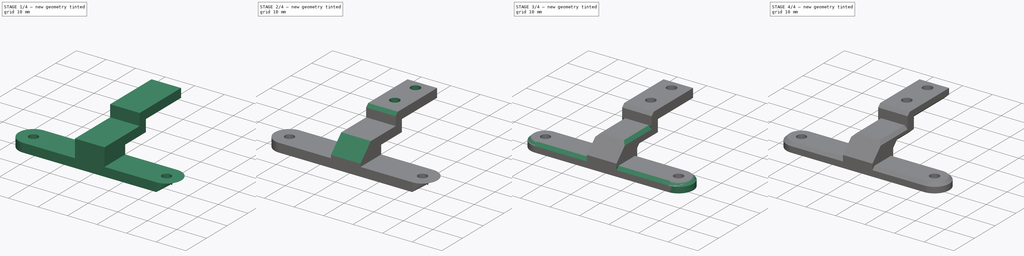
[diagram: build sequence overview — one tinted view per stage of 4, left to right]
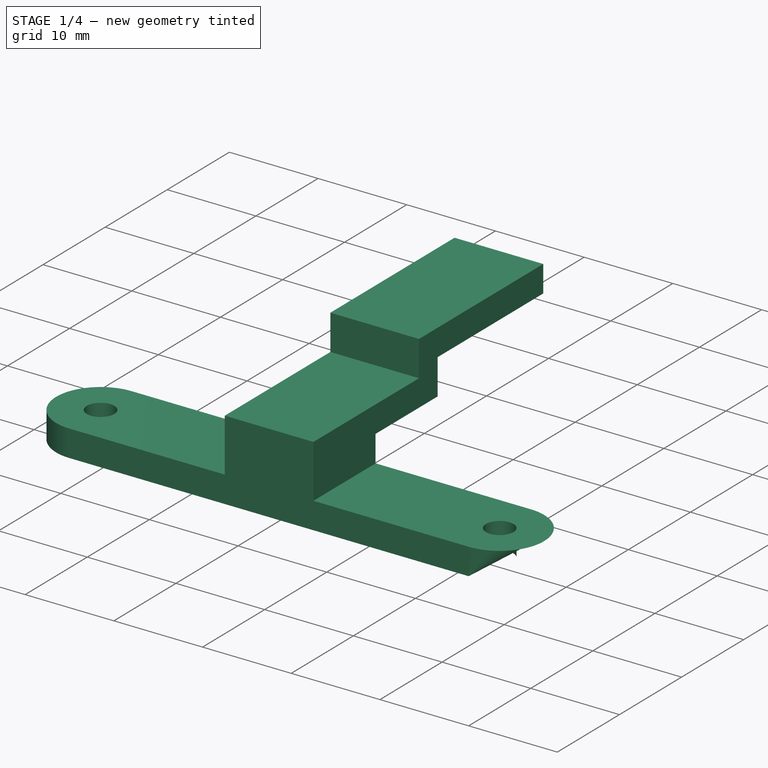
[diagram: stage 1 of 4 — iso view after this stage's code; geometry added in this stage tinted green]
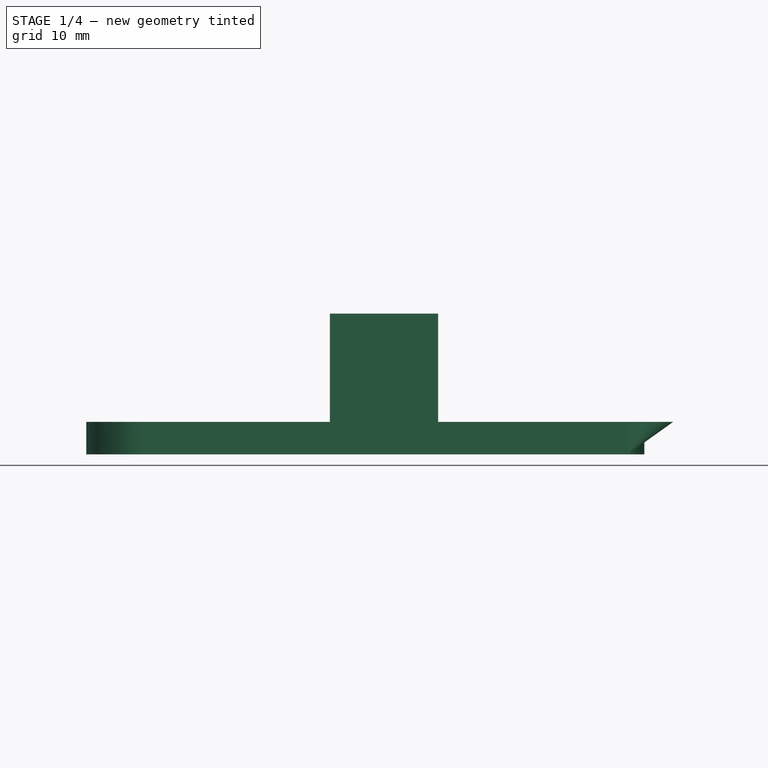
[diagram: stage 1 of 4 — front view after this stage's code; geometry added in this stage tinted green]
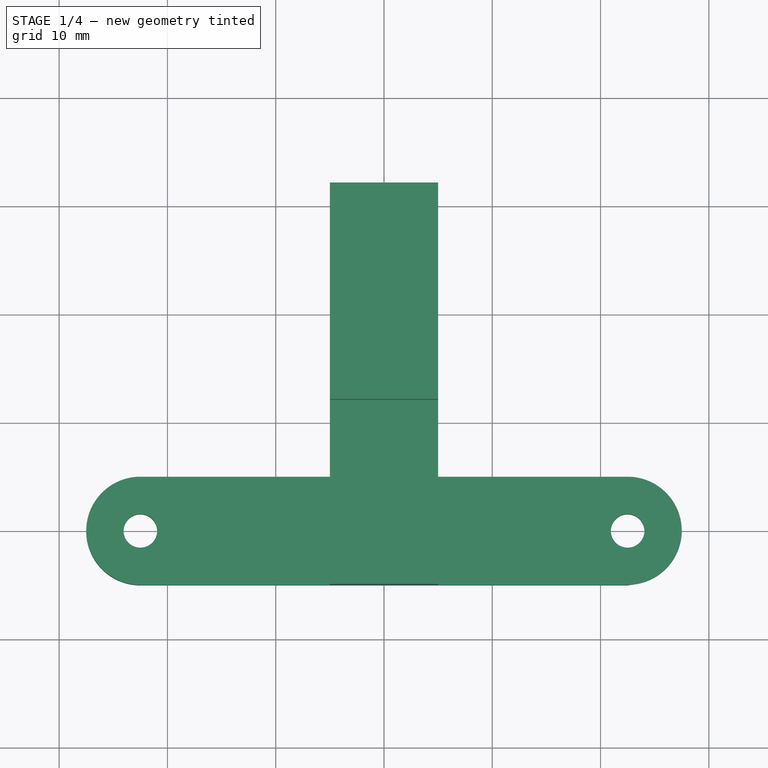
[diagram: stage 1 of 4 — top view after this stage's code; geometry added in this stage tinted green]
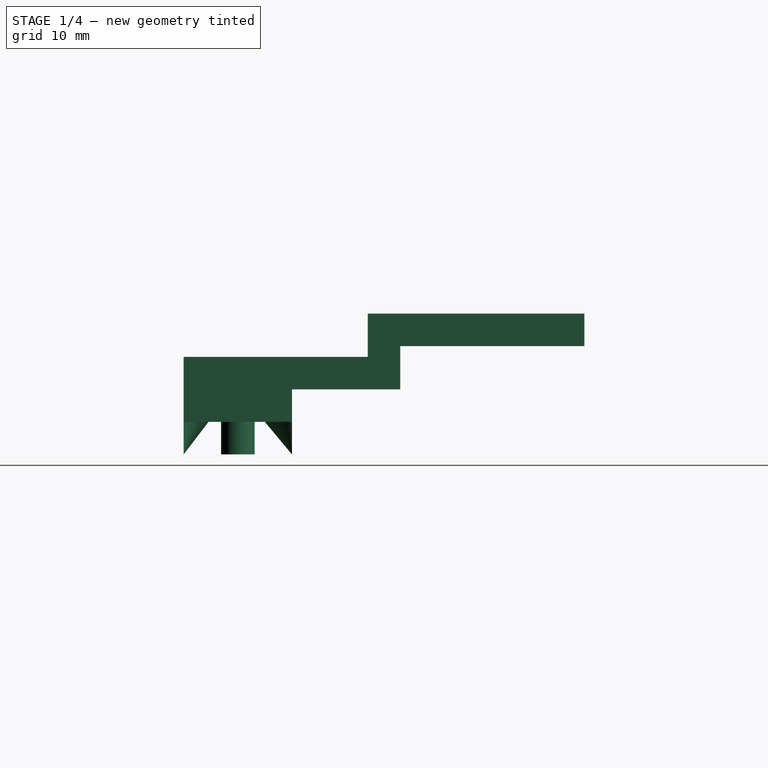
[diagram: stage 1 of 4 — right view after this stage's code; geometry added in this stage tinted green]
FCSTD DOCUMENT  (FreeCAD 0.18R16093 +53 (Git))
Label: rsd435_frontal_holder
License: All rights reserved
LicenseURL: http://en.wikipedia.org/wiki/All_rights_reserved
objects: PartDesign::Chamfer×7, Sketcher::SketchObject×3, PartDesign::Pad×2, PartDesign::Pocket×1, PartDesign::Body×1
note: 17 computed .brp shape members not serialized (recipe doc carries the construction recipe); baked Part::Feature solids carry a one-line shape summary decoded from their .brp

FEATURE [Sketcher::SketchObject] Sketch
  MapMode = 5
  Support = -> [XY_Plane]
  sketch-geometry (6):
    g0: ArcOfCircle CenterX=-22.5 CenterY=0 CenterZ=0 NormalX=0 NormalY=0 NormalZ=1 AngleXU=0 Radius=5 StartAngle=1.5708 EndAngle=4.71239
    g1: ArcOfCircle CenterX=22.5 CenterY=-2e-16 CenterZ=0 NormalX=0 NormalY=0 NormalZ=1 AngleXU=0 Radius=5 StartAngle=4.71239 EndAngle=7.85398
    g2: LineSegment StartX=-22.5 StartY=-5 StartZ=0 EndX=22.5 EndY=-5 EndZ=0
    g3: LineSegment StartX=-22.5 StartY=5 StartZ=0 EndX=22.5 EndY=5 EndZ=0
    g4: Circle CenterX=-22.5 CenterY=0 CenterZ=0 NormalX=0 NormalY=0 NormalZ=1 AngleXU=0 Radius=1.55
    g5: Circle CenterX=22.5 CenterY=-2e-16 CenterZ=0 NormalX=0 NormalY=0 NormalZ=1 AngleXU=0 Radius=1.55
  constraints (13):
    c: Tangent(g0,g3) = 1.5708
    c: Tangent(g0,g2) = -1.5708
    c: Tangent(g2,g1) = -1.5708
    c: Tangent(g3,g1) = 1.5708
    c: Horizontal(g2)
    c: Equal(g0,g1)
    c: Symmetric(g0,g1,g-1)
    c: DistanceY(g0,g0) = 10
    c: DistanceX(g0,g1) = 45
    c: Coincident(g4,g0)
    c: Coincident(g5,g1)
    c: Diameter(g4) = 3.1
    c: Equal(g5,g4)
FEATURE [PartDesign::Pad] Pad
  Length = 3
  Length2 = 100
  Profile = -> Sketch
  Type = 0
FEATURE [Sketcher::SketchObject] Sketch001
  ExternalGeometry = -> [Pad]
  MapMode = 5
  Placement = pos=(0,0,0) rot=(0.57735,0.57735,0.57735;2.0944rad)
  Support = -> [YZ_Plane]
  sketch-geometry (12):
    g0: LineSegment StartX=5 StartY=3 StartZ=0 EndX=5 EndY=7 EndZ=0
    g1: LineSegment StartX=32 StartY=10 StartZ=0 EndX=32 EndY=13 EndZ=0
    g2: LineSegment StartX=-5 StartY=3 StartZ=0 EndX=5 EndY=3 EndZ=0
    g3: LineSegment StartX=15 StartY=10 StartZ=0 EndX=32 EndY=10 EndZ=0
    g4: LineSegment StartX=32 StartY=13 StartZ=0 EndX=15 EndY=13 EndZ=0
    g5: LineSegment StartX=15 StartY=13 StartZ=0 EndX=12 EndY=13 EndZ=0
    g6: LineSegment StartX=12 StartY=13 StartZ=0 EndX=12 EndY=9 EndZ=0
    g7: LineSegment StartX=15 StartY=10 StartZ=0 EndX=15 EndY=6 EndZ=0
    g8: LineSegment StartX=12 StartY=9 StartZ=0 EndX=-5 EndY=9 EndZ=0
    g9: LineSegment StartX=-5 StartY=9 StartZ=0 EndX=-5 EndY=3 EndZ=0
    g10: LineSegment StartX=15 StartY=6 StartZ=0 EndX=5 EndY=6 EndZ=0
    g11: LineSegment StartX=5 StartY=6 StartZ=0 EndX=5 EndY=3 EndZ=0
  constraints (35):
    c: Vertical(g0)
    c: Vertical(g1)
    c: Coincident(g2,g0)
    c: Horizontal(g-3,g2)
    c: DistanceY(g0,g0) = 4
    c: DistanceY(g1,g1) = 3
    c: DistanceX(g2,g2) = 10
    c: Coincident(g-3,g0)
    c: Horizontal(g3)
    c: Horizontal(g4)
    c: Coincident(g3,g1)
    c: Coincident(g4,g1)
    c: Vertical(g3,g4)
    c: DistanceX(g4,g4) = 17
    c: DistanceY(g0,g4) = 10
    c: DistanceX(g0,g3) = 10
    c: Coincident(g5,g4)
    c: Horizontal(g5)
    c: Coincident(g6,g5)
    c: Vertical(g6)
    c: Coincident(g7,g3)
    c: Vertical(g7)
    c: Coincident(g8,g6)
    c: Horizontal(g8)
    c: Coincident(g9,g2)
    c: Vertical(g9)
    c: Coincident(g10,g7)
    c: Horizontal(g10)
    c: Coincident(g11,g10)
    c: Coincident(g11,g0)
    c: Vertical(g11)
    c: Coincident(g9,g8)
    c: DistanceX(g5,g4) = 3
    c: DistanceY(g7,g6) = 3
    c: DistanceY(g0,g10) = 3
FEATURE [PartDesign::Pad] Pad001
  BaseFeature = -> Pad
  Length = 10
  Length2 = 100
  Midplane = true
  Profile = -> Sketch001
  Type = 0
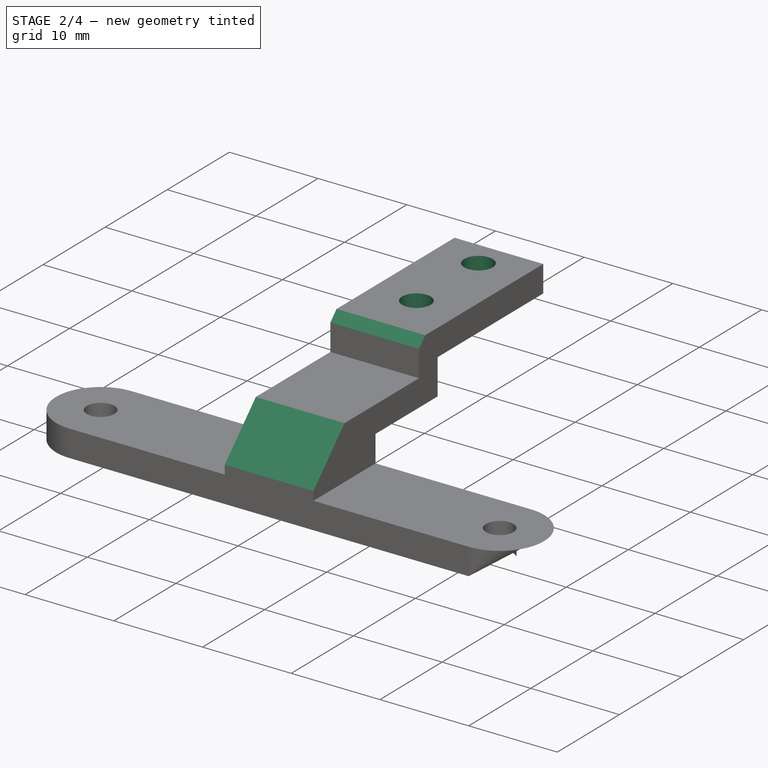
[diagram: stage 2 of 4 — iso view after this stage's code; geometry added in this stage tinted green]
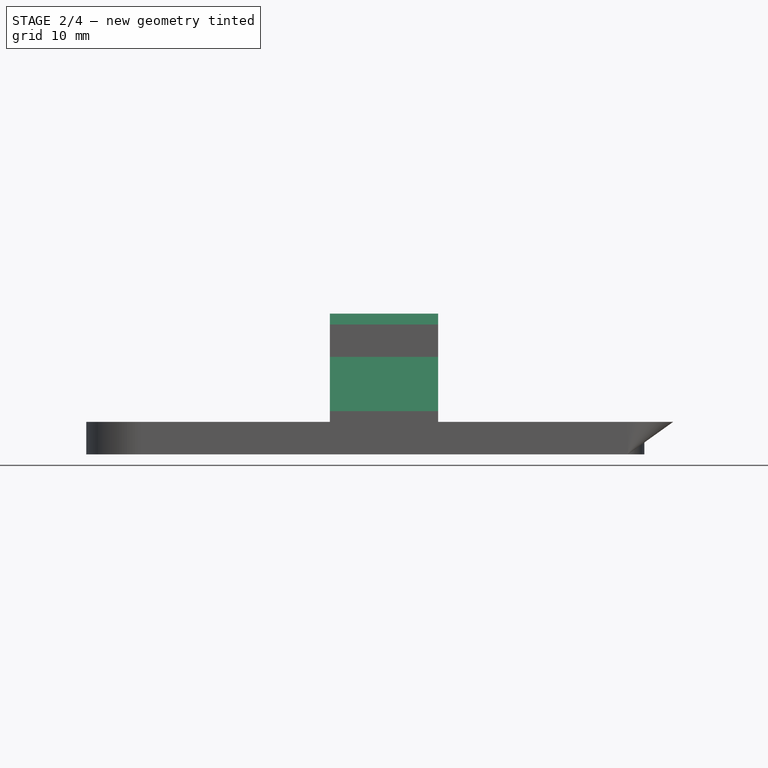
[diagram: stage 2 of 4 — front view after this stage's code; geometry added in this stage tinted green]
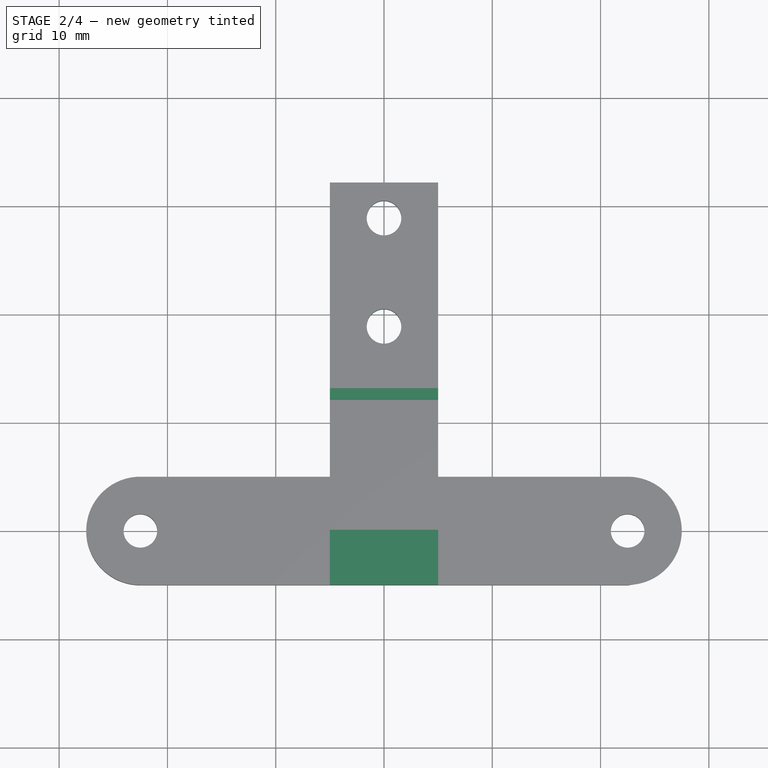
[diagram: stage 2 of 4 — top view after this stage's code; geometry added in this stage tinted green]
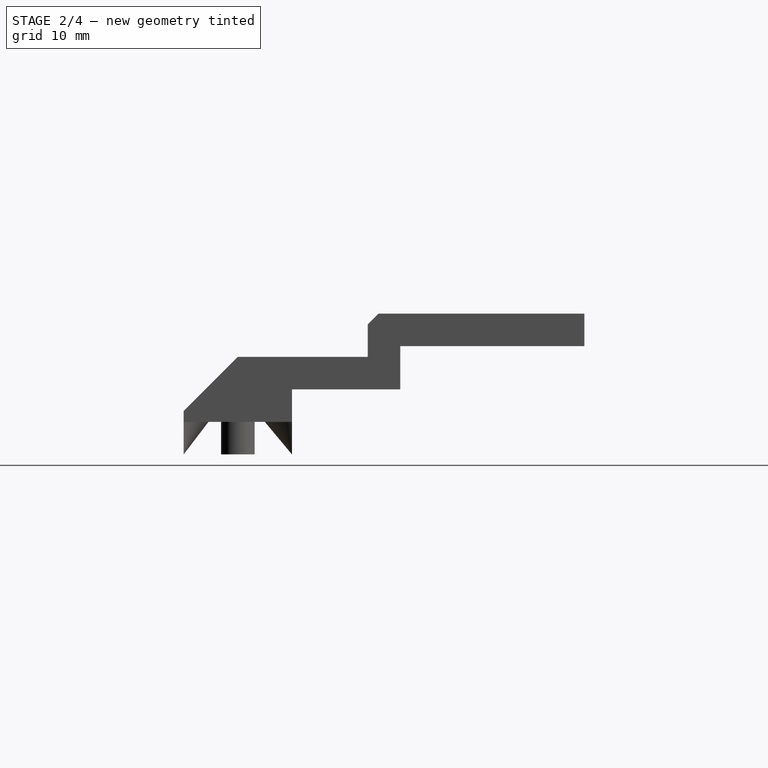
[diagram: stage 2 of 4 — right view after this stage's code; geometry added in this stage tinted green]
FEATURE [Sketcher::SketchObject] Sketch002
  MapMode = 5
  Placement = pos=(-3.6e-15,2.9e-15,13) rot=(0,0,1;0rad)
  Support = -> [Pad001]
  sketch-geometry (2):
    g0: Circle CenterX=0 CenterY=28.7146 CenterZ=0 NormalX=0 NormalY=0 NormalZ=1 AngleXU=0 Radius=1.6
    g1: Circle CenterX=0 CenterY=18.7146 CenterZ=0 NormalX=0 NormalY=0 NormalZ=1 AngleXU=0 Radius=1.6
  constraints (5):
    c: Diameter(g0) = 3.2
    c: Equal(g0,g1)
    c: Vertical(g1,g0)
    c: PointOnObject(g0,g-2)
    c: Distance(g1,g0) = 10
FEATURE [PartDesign::Pocket] Pocket
  BaseFeature = -> Pad001
  Length = 5
  Length2 = 100
  Profile = -> Sketch002
  Type = 0
FEATURE [PartDesign::Chamfer] Chamfer
  Base = -> Pocket [Edge26]
  BaseFeature = -> Pocket
  Size = 5
FEATURE [PartDesign::Chamfer] Chamfer001
  Base = -> Chamfer [Edge34]
  BaseFeature = -> Chamfer
  Size = 1
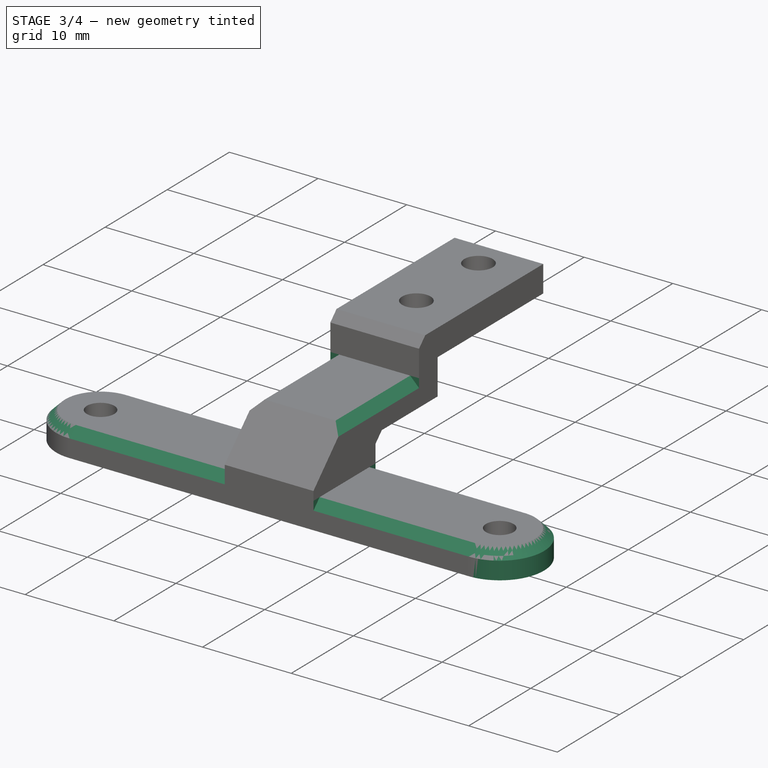
[diagram: stage 3 of 4 — iso view after this stage's code; geometry added in this stage tinted green]
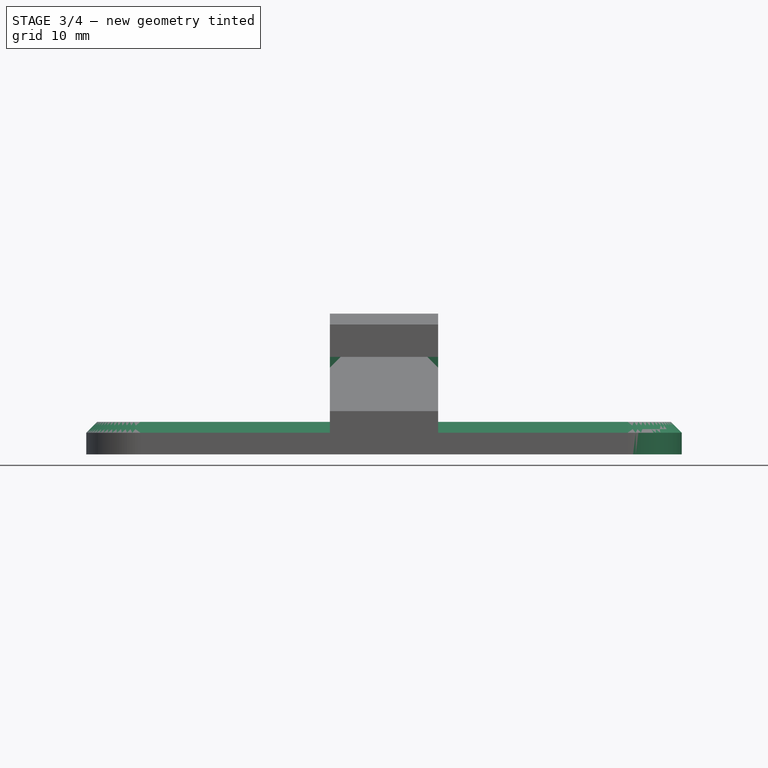
[diagram: stage 3 of 4 — front view after this stage's code; geometry added in this stage tinted green]
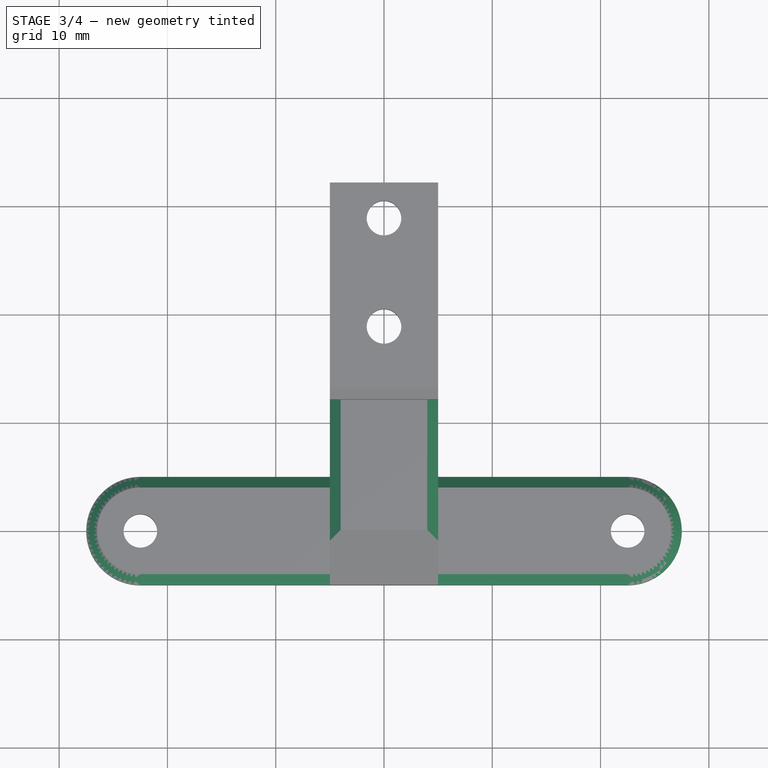
[diagram: stage 3 of 4 — top view after this stage's code; geometry added in this stage tinted green]
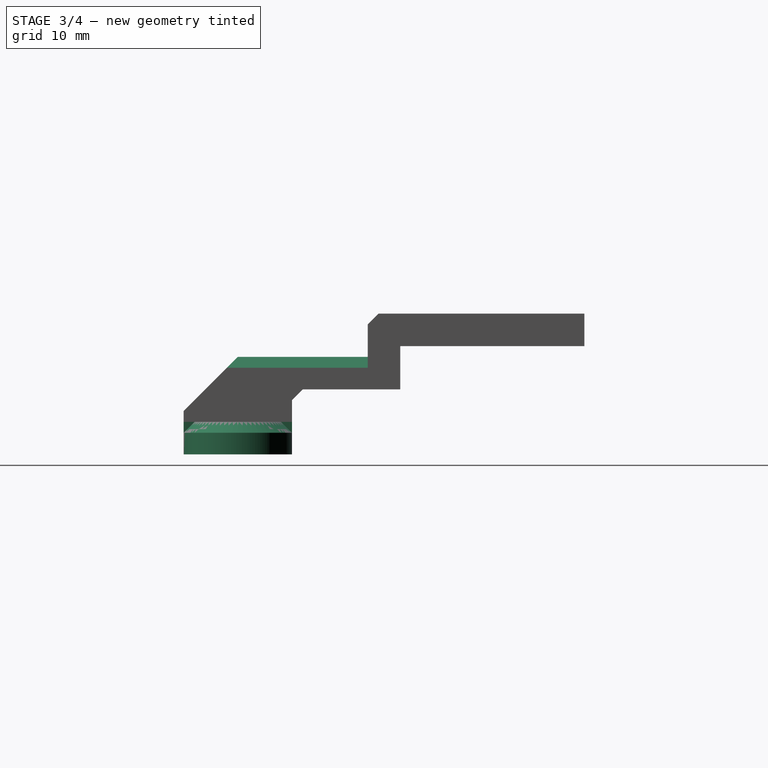
[diagram: stage 3 of 4 — right view after this stage's code; geometry added in this stage tinted green]
FEATURE [PartDesign::Chamfer] Chamfer002
  Base = -> Chamfer001 [Edge41]
  BaseFeature = -> Chamfer001
  Size = 1
FEATURE [PartDesign::Chamfer] Chamfer003
  Base = -> Chamfer002 [Edge38,Edge9]
  BaseFeature = -> Chamfer002
  Size = 1
FEATURE [PartDesign::Chamfer] Chamfer004
  Base = -> Chamfer003 [Edge62,Edge31,Edge30,Edge66,Edge72,Edge32]
  BaseFeature = -> Chamfer003
  Size = 1
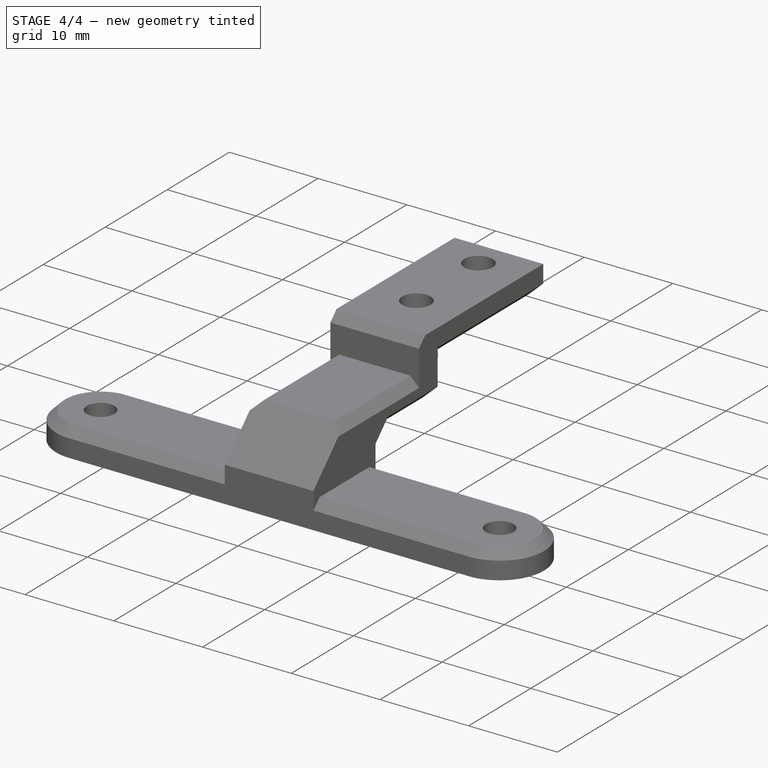
[diagram: stage 4 of 4 — iso view after this stage's code; geometry added in this stage tinted green]
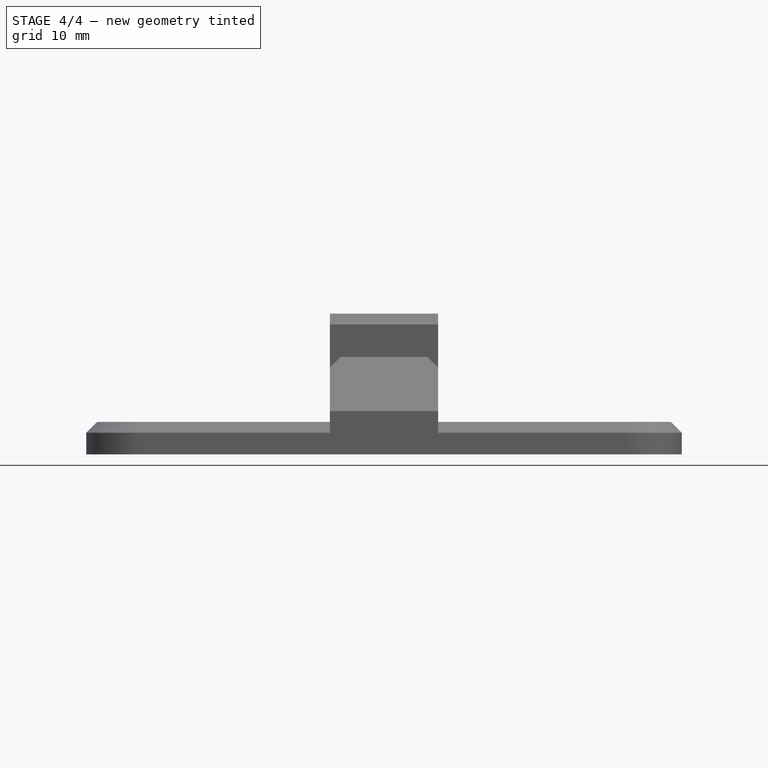
[diagram: stage 4 of 4 — front view after this stage's code; geometry added in this stage tinted green]
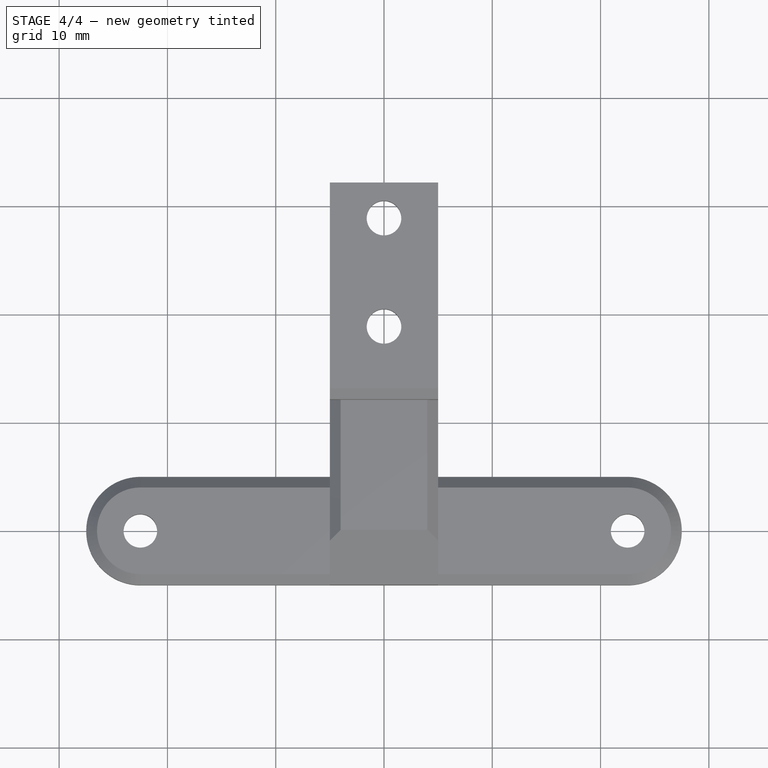
[diagram: stage 4 of 4 — top view after this stage's code; geometry added in this stage tinted green]
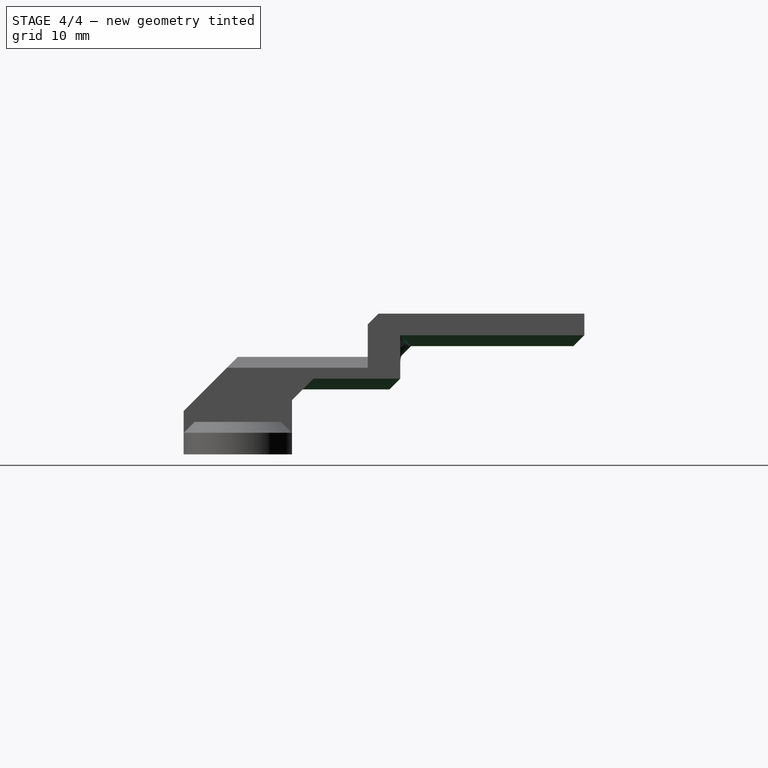
[diagram: stage 4 of 4 — right view after this stage's code; geometry added in this stage tinted green]
FEATURE [PartDesign::Chamfer] Chamfer005
  Base = -> Chamfer004 [Edge6,Edge52,Edge53]
  BaseFeature = -> Chamfer004
  Size = 1
FEATURE [PartDesign::Chamfer] Chamfer006
  Base = -> Chamfer005 [Edge23,Edge3,Edge28,Edge27]
  BaseFeature = -> Chamfer005
  Size = 1
FEATURE [PartDesign::Body] Body
  Group = -> [Sketch,Pad,Sketch001,Pad001,Sketch002,Pocket,Chamfer,Chamfer001,Chamfer002,Chamfer003,Chamfer004,Chamfer005,Chamfer006]
  Origin = -> Origin
  Tip = -> Chamfer006
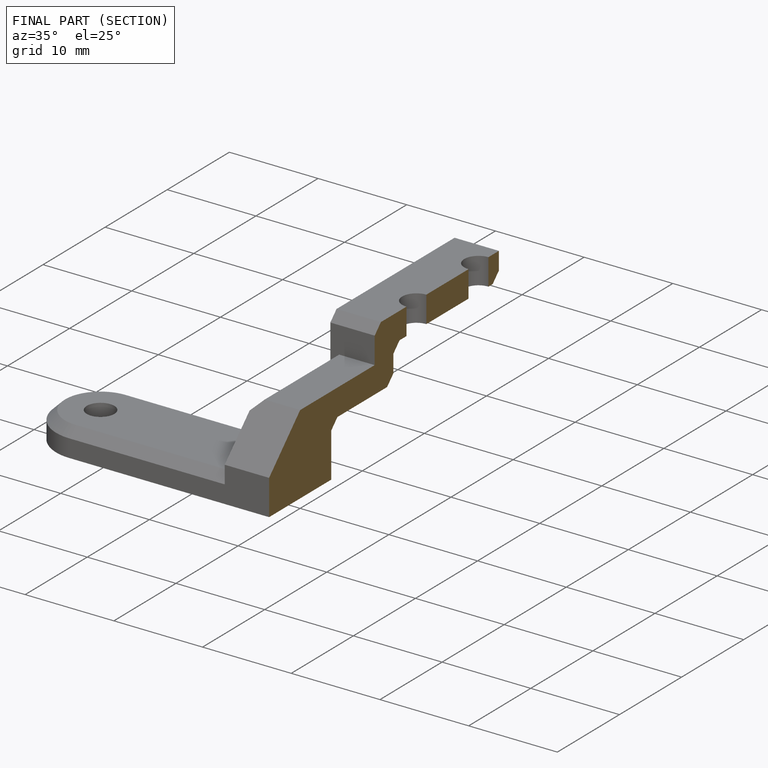
[diagram: finished part — half-section view (interior)]
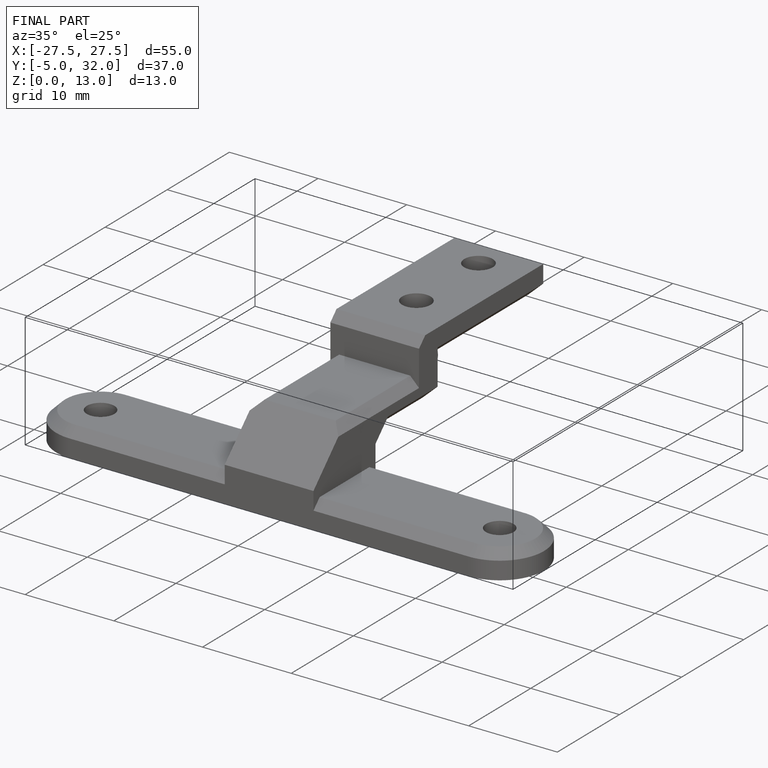
[diagram: finished part — iso view with bounding-box wireframe]
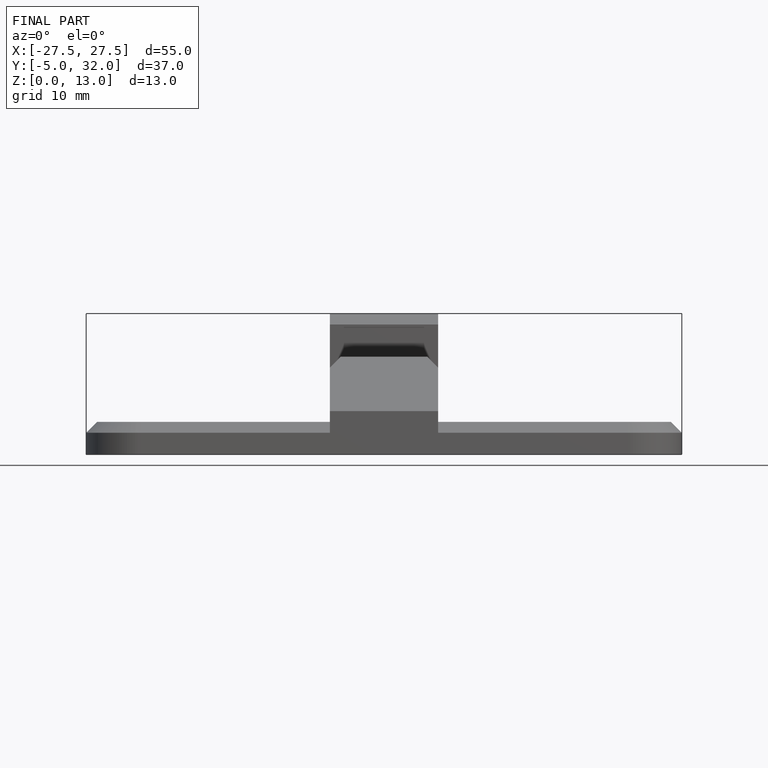
[diagram: finished part — front view with bounding-box wireframe]
